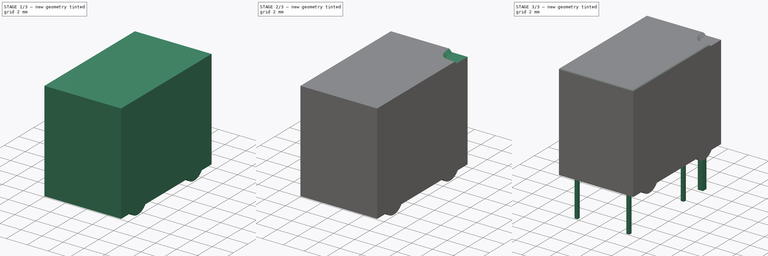
[diagram: build sequence overview — one tinted view per stage of 3, left to right]
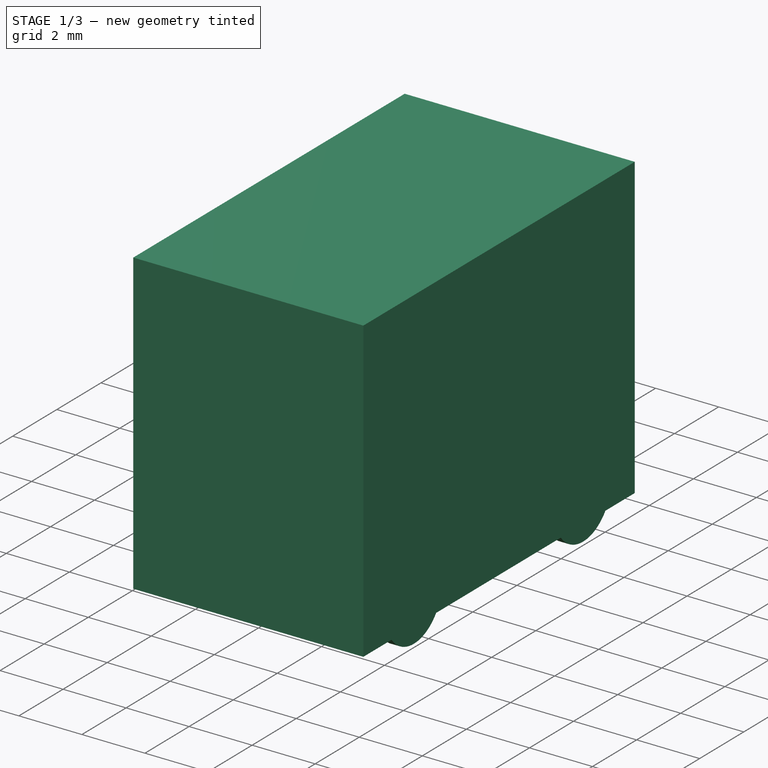
[diagram: stage 1 of 3 — iso view after this stage's code; geometry added in this stage tinted green]
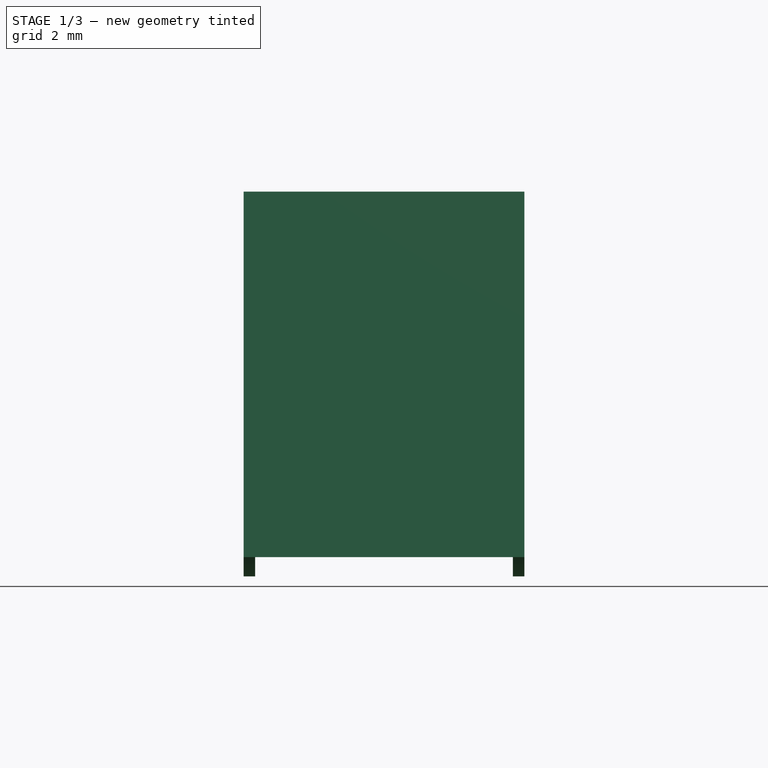
[diagram: stage 1 of 3 — front view after this stage's code; geometry added in this stage tinted green]
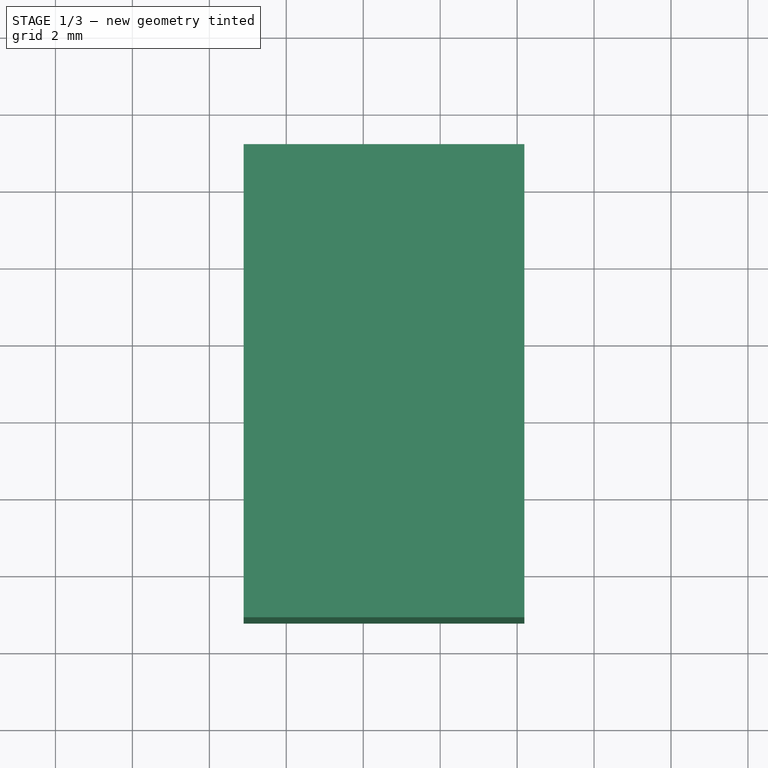
[diagram: stage 1 of 3 — top view after this stage's code; geometry added in this stage tinted green]
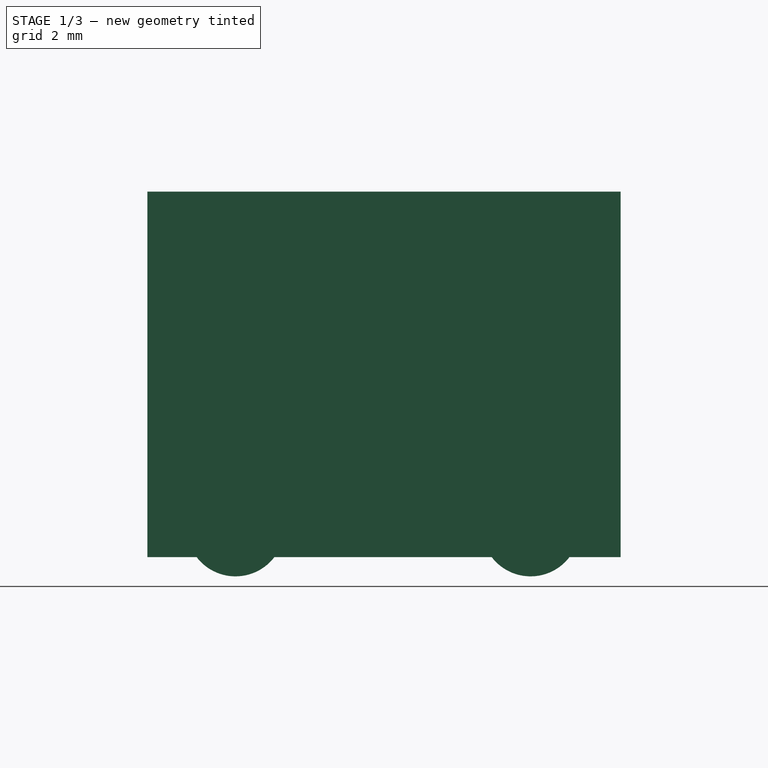
[diagram: stage 1 of 3 — right view after this stage's code; geometry added in this stage tinted green]
FCSTD DOCUMENT  (FreeCAD 0.16R6712 (Git))
Label: Relay_SPDT_Omron_G5V-1
License: All rights reserved
LicenseURL: http://en.wikipedia.org/wiki/All_rights_reserved
objects: Sketcher::SketchObject×5, PartDesign::Pad×4, PartDesign::Pocket×1, PartDesign::Chamfer×1, PartDesign::Fillet×1, Part::MultiFuse×1
note: 18 computed .brp shape members not serialized (recipe doc carries the construction recipe); baked Part::Feature solids carry a one-line shape summary decoded from their .brp

FEATURE [Sketcher::SketchObject] Sketch
  Placement = pos=(0,0,0.5) rot=(0,0,-1;1.5708rad)
  sketch-geometry (4):
    g0: LineSegment StartX=-1.07 StartY=-1.11 StartZ=0 EndX=11.23 EndY=-1.11 EndZ=0
    g1: LineSegment StartX=11.23 StartY=-1.11 StartZ=0 EndX=11.23 EndY=6.19 EndZ=0
    g2: LineSegment StartX=11.23 StartY=6.19 StartZ=0 EndX=-1.07 EndY=6.19 EndZ=0
    g3: LineSegment StartX=-1.07 StartY=6.19 StartZ=0 EndX=-1.07 EndY=-1.11 EndZ=0
  constraints (12):
    c: Coincident(g0,g1)
    c: Coincident(g1,g2)
    c: Coincident(g2,g3)
    c: Coincident(g3,g0)
    c: Horizontal(g0)
    c: Horizontal(g2)
    c: Vertical(g1)
    c: Vertical(g3)
    c: DistanceX(g2,g2) = 12.3
    c: DistanceY(g1,g1) = 7.3
    c: DistanceX(g0,g-1) = 1.07
    c: DistanceY(g0,g-1) = 1.11
FEATURE [PartDesign::Pad] Pad
  Length = 9.5
  Length2 = 100
  Placement = pos=(0,0,0.5) rot=(0,0,-1;1.5708rad)
  Sketch = -> Sketch
  Type = 0
FEATURE [Sketcher::SketchObject] Sketch003
  Placement = pos=(6.19,0,0) rot=(0.57735,0.57735,0.57735;2.0944rad)
  expr: Placement.Base.x = 7.3 - 1.11
  sketch-geometry (5):
    g0: ArcOfCircle CenterX=-8.94 CenterY=1.27 CenterZ=0 NormalX=0 NormalY=0 NormalZ=1 Radius=1.27 StartAngle=3.14159 EndAngle=6.28319
    g1: LineSegment StartX=-10.21 StartY=1.27 StartZ=0 EndX=-7.67 EndY=1.27 EndZ=0
    g2: ArcOfCircle CenterX=-1.27 CenterY=1.27 CenterZ=0 NormalX=0 NormalY=0 NormalZ=1 Radius=1.27 StartAngle=3.14159 EndAngle=6.28319
    g3: LineSegment StartX=-2.54 StartY=1.27 StartZ=0 EndX=0 EndY=1.27 EndZ=0
    g4: LineSegment [constr] StartX=-7.67 StartY=1.27 StartZ=0 EndX=-2.54 EndY=1.27 EndZ=0
  constraints (16):
    c: Coincident(g1,g0)
    c: Coincident(g1,g0)
    c: Horizontal(g1)
    c: PointOnObject(g0,g1)
    c: DistanceY(g-1,g0) = 1.27
    c: Radius(g0) = 1.27
    c: Coincident(g3,g2)
    c: Coincident(g3,g2)
    c: Horizontal(g3)
    c: PointOnObject(g2,g3)
    c: Equal(g0,g2) = 0.5
    c: Coincident(g4,g0)
    c: Coincident(g4,g2)
    c: Horizontal(g4)
    c: DistanceX(g0,g2) = 7.67
    c: DistanceX(g2,g-1) = 1.27
FEATURE [PartDesign::Pad] Pad002
  Length = 0.3
  Length2 = 100
  Placement = pos=(6.19,0,0) rot=(0.57735,0.57735,0.57735;2.0944rad)
  Reversed = true
  Sketch = -> Sketch003
  Type = 0
FEATURE [Sketcher::SketchObject] Sketch004
  Placement = pos=(-1.11,0,0) rot=(0.57735,0.57735,0.57735;2.0944rad)
  expr: Placement.Base.x = -1.11
  sketch-geometry (5):
    g0: ArcOfCircle CenterX=-8.94 CenterY=1.27 CenterZ=0 NormalX=0 NormalY=0 NormalZ=1 Radius=1.27 StartAngle=3.14159 EndAngle=6.28319
    g1: LineSegment StartX=-10.21 StartY=1.27 StartZ=0 EndX=-7.67 EndY=1.27 EndZ=0
    g2: ArcOfCircle CenterX=-1.27 CenterY=1.27 CenterZ=0 NormalX=0 NormalY=0 NormalZ=1 Radius=1.27 StartAngle=3.14159 EndAngle=6.28319
    g3: LineSegment StartX=-2.54 StartY=1.27 StartZ=0 EndX=0 EndY=1.27 EndZ=0
    g4: LineSegment [constr] StartX=-7.67 StartY=1.27 StartZ=0 EndX=-2.54 EndY=1.27 EndZ=0
  constraints (16):
    c: Coincident(g1,g0)
    c: Coincident(g1,g0)
    c: Horizontal(g1)
    c: PointOnObject(g0,g1)
    c: DistanceY(g-1,g0) = 1.27
    c: Radius(g0) = 1.27
    c: Coincident(g3,g2)
    c: Coincident(g3,g2)
    c: Horizontal(g3)
    c: PointOnObject(g2,g3)
    c: Equal(g0,g2) = 0.5
    c: Coincident(g4,g0)
    c: Coincident(g4,g2)
    c: Horizontal(g4)
    c: DistanceX(g0,g2) = 7.67
    c: DistanceX(g2,g-1) = 1.27
FEATURE [PartDesign::Pad] Pad003
  Length = 0.3
  Length2 = 100
  Placement = pos=(-1.11,0,0) rot=(0.57735,0.57735,0.57735;2.0944rad)
  Sketch = -> Sketch004
  Type = 0
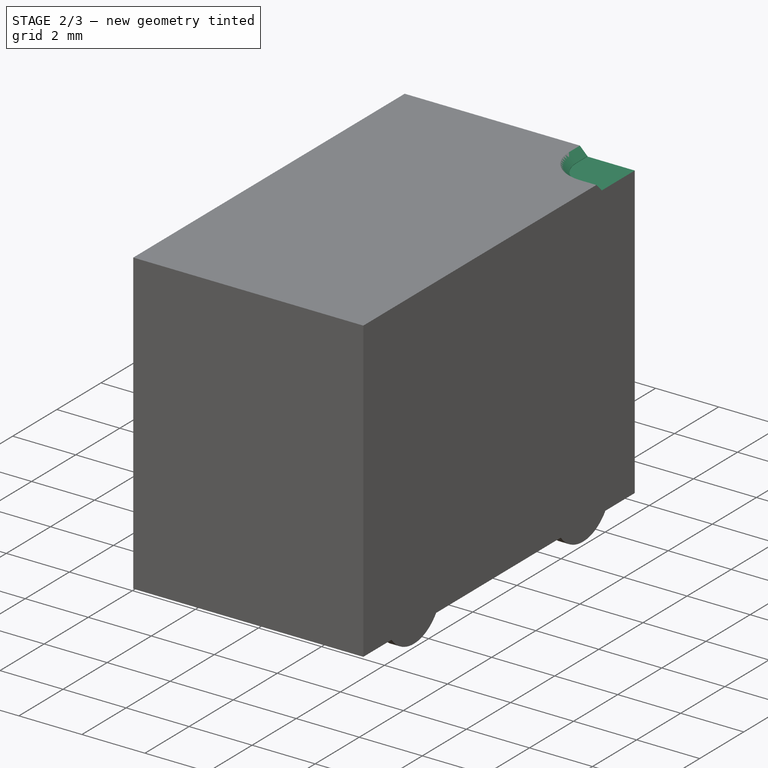
[diagram: stage 2 of 3 — iso view after this stage's code; geometry added in this stage tinted green]
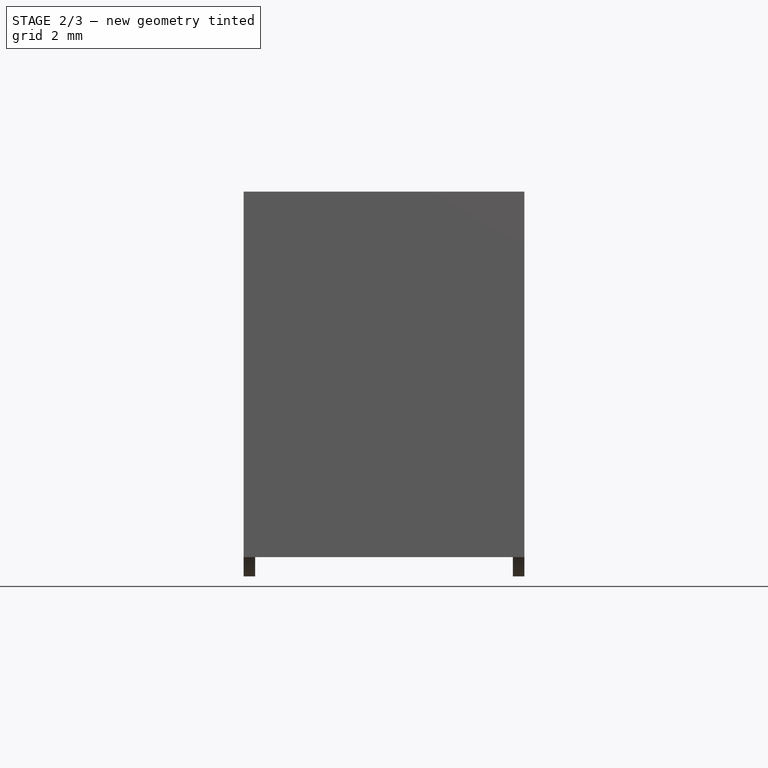
[diagram: stage 2 of 3 — front view after this stage's code; geometry added in this stage tinted green]
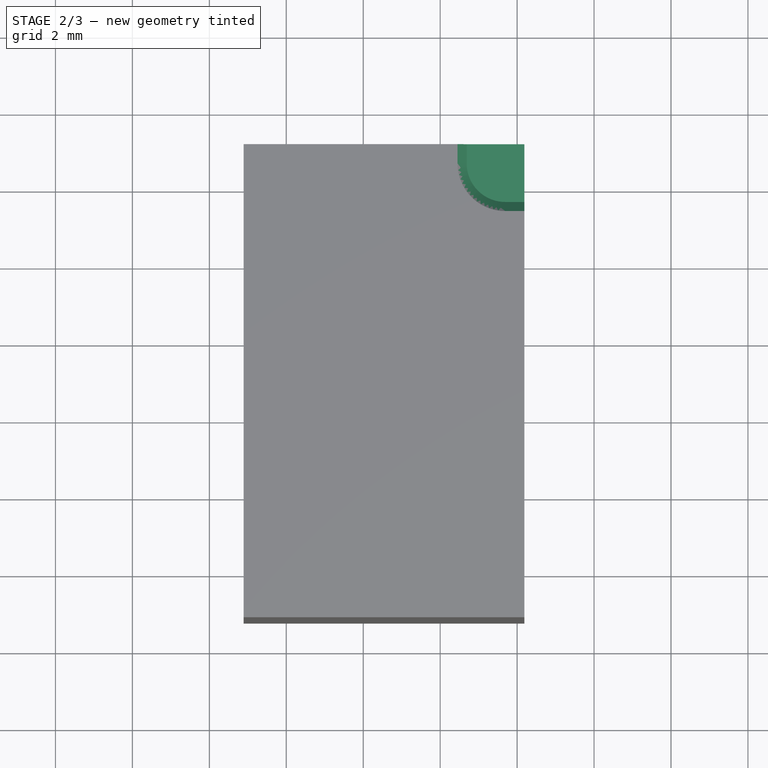
[diagram: stage 2 of 3 — top view after this stage's code; geometry added in this stage tinted green]
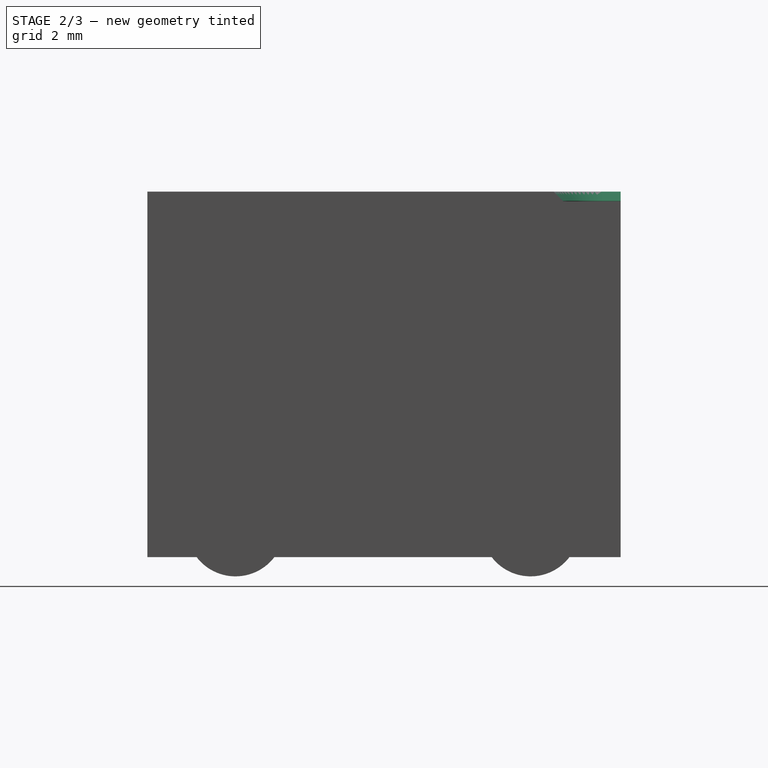
[diagram: stage 2 of 3 — right view after this stage's code; geometry added in this stage tinted green]
FEATURE [Sketcher::SketchObject] Sketch002
  ExternalGeometry = -> [Pad]
  Placement = pos=(0,0,10) rot=(0,0,-1;1.5708rad)
  Support = -> Pad [Face6]
  sketch-geometry (5):
    g0: ArcOfCircle CenterX=-0.57 CenterY=5.69 CenterZ=0 NormalX=0 NormalY=0 NormalZ=1 Radius=1 StartAngle=4.71239 EndAngle=6.28319
    g1: LineSegment StartX=-0.57 StartY=4.69 StartZ=0 EndX=-1.07 EndY=4.69 EndZ=0
    g2: LineSegment StartX=-1.07 StartY=4.69 StartZ=0 EndX=-1.07 EndY=6.19 EndZ=0
    g3: LineSegment StartX=-1.07 StartY=6.19 StartZ=0 EndX=0.43 EndY=6.19 EndZ=0
    g4: LineSegment StartX=0.43 StartY=6.19 StartZ=0 EndX=0.43 EndY=5.69 EndZ=0
  constraints (15):
    c: Coincident(g1,g0)
    c: PointOnObject(g1,g-4)
    c: Coincident(g2,g1)
    c: Coincident(g2,g-4)
    c: Coincident(g3,g2)
    c: PointOnObject(g3,g-3)
    c: Coincident(g4,g3)
    c: Coincident(g4,g0)
    c: Vertical(g4)
    c: Horizontal(g1)
    c: DistanceY(g0,g2) = 0.5
    c: DistanceX(g2,g0) = 0.5
    c: Tangent(g1,g0)
    c: Tangent(g0,g4)
    c: Radius(g0) = 1
FEATURE [PartDesign::Pocket] Pocket
  Length = 0.25
  Placement = pos=(0,0,0.5) rot=(0,0,-1;1.5708rad)
  Sketch = -> Sketch002
  Type = 0
FEATURE [PartDesign::Chamfer] Chamfer
  Base = -> Pocket [Edge16,Edge15,Edge17]
  Placement = pos=(0,0,0.5) rot=(0,0,-1;1.5708rad)
  Size = 0.24
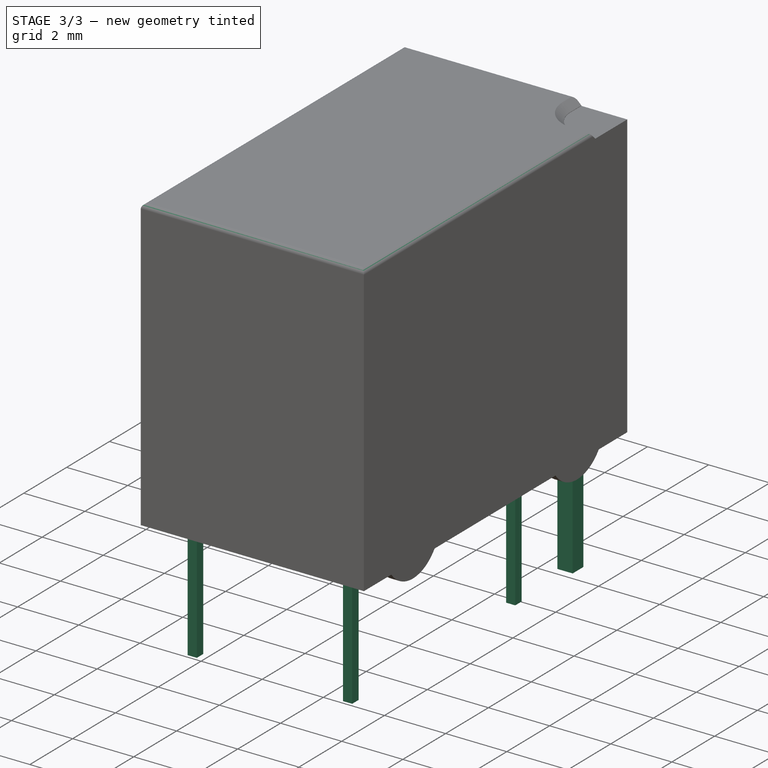
[diagram: stage 3 of 3 — iso view after this stage's code; geometry added in this stage tinted green]
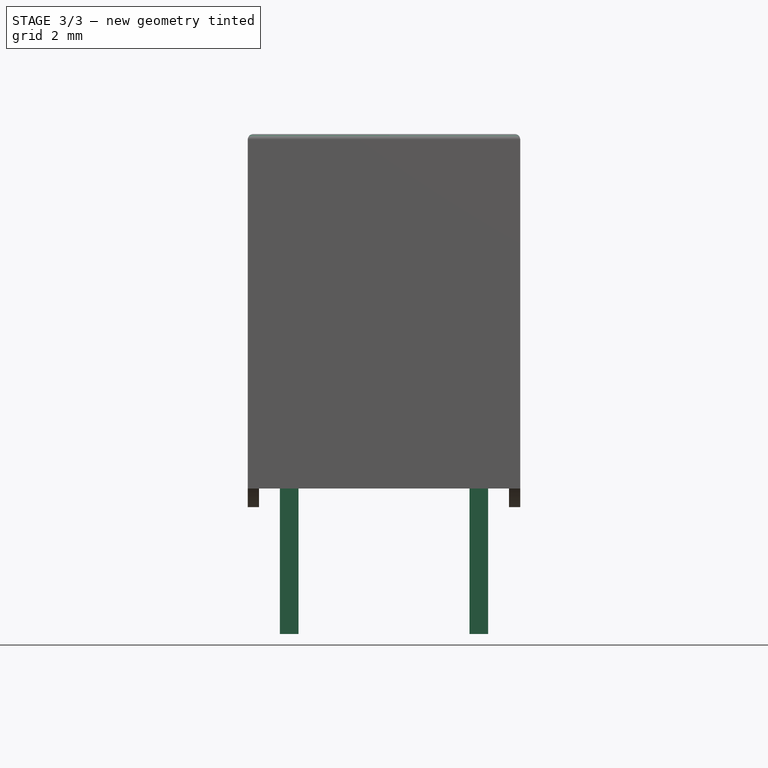
[diagram: stage 3 of 3 — front view after this stage's code; geometry added in this stage tinted green]
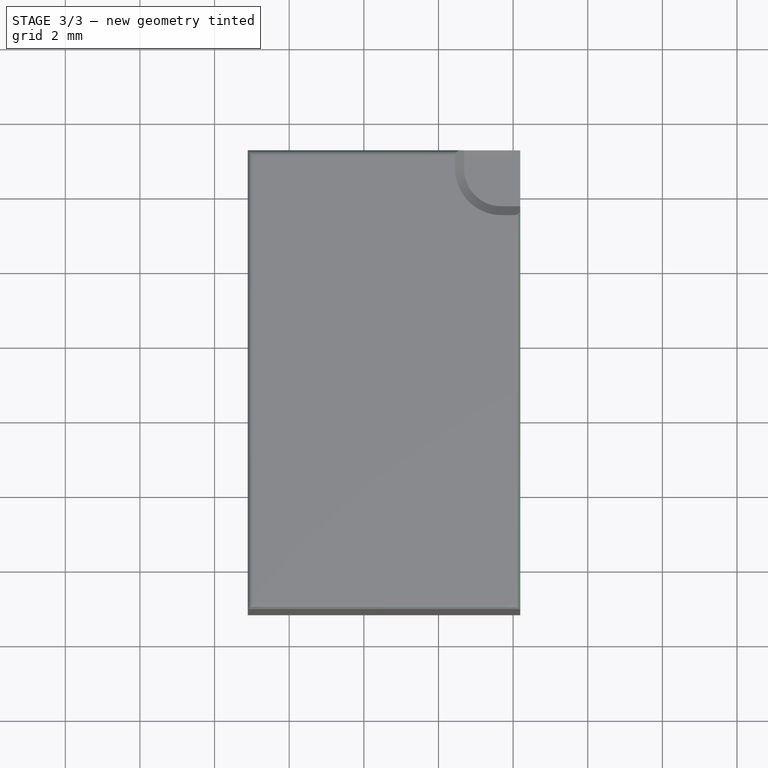
[diagram: stage 3 of 3 — top view after this stage's code; geometry added in this stage tinted green]
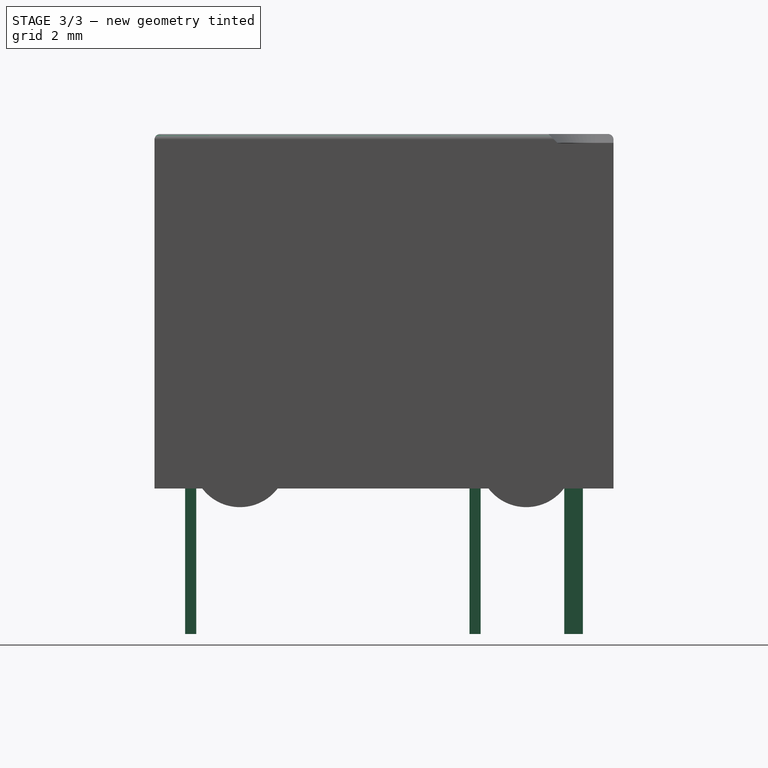
[diagram: stage 3 of 3 — right view after this stage's code; geometry added in this stage tinted green]
FEATURE [Sketcher::SketchObject] Sketch001
  Placement = pos=(0,0,0.6) rot=(0,0,-1;1.5708rad)
  sketch-geometry (30):
    g0: LineSegment StartX=-0.25 StartY=-0.25 StartZ=0 EndX=0.25 EndY=-0.25 EndZ=0
    g1: LineSegment StartX=0.25 StartY=-0.25 StartZ=0 EndX=0.25 EndY=0.25 EndZ=0
    g2: LineSegment StartX=0.25 StartY=0.25 StartZ=0 EndX=-0.25 EndY=0.25 EndZ=0
    g3: LineSegment StartX=-0.25 StartY=0.25 StartZ=0 EndX=-0.25 EndY=-0.25 EndZ=0
    g4: LineSegment StartX=2.79 StartY=0.15 StartZ=0 EndX=2.49 EndY=0.15 EndZ=0
    g5: LineSegment StartX=2.49 StartY=0.15 StartZ=0 EndX=2.49 EndY=-0.15 EndZ=0
    g6: LineSegment StartX=2.49 StartY=-0.15 StartZ=0 EndX=2.79 EndY=-0.15 EndZ=0
    g7: LineSegment StartX=2.79 StartY=-0.15 StartZ=0 EndX=2.79 EndY=0.15 EndZ=0
    g8: LineSegment StartX=-0.25 StartY=4.83 StartZ=0 EndX=0.25 EndY=4.83 EndZ=0
    g9: LineSegment StartX=0.25 StartY=4.83 StartZ=0 EndX=0.25 EndY=5.33 EndZ=0
    g10: LineSegment StartX=0.25 StartY=5.33 StartZ=0 EndX=-0.25 EndY=5.33 EndZ=0
    g11: LineSegment StartX=-0.25 StartY=5.33 StartZ=0 EndX=-0.25 EndY=4.83 EndZ=0
    g12: LineSegment StartX=2.79 StartY=4.93 StartZ=0 EndX=2.49 EndY=4.93 EndZ=0
    g13: LineSegment StartX=2.49 StartY=4.93 StartZ=0 EndX=2.49 EndY=5.23 EndZ=0
    g14: LineSegment StartX=2.49 StartY=5.23 StartZ=0 EndX=2.79 EndY=5.23 EndZ=0
    g15: LineSegment StartX=2.79 StartY=5.23 StartZ=0 EndX=2.79 EndY=4.93 EndZ=0
    g16: LineSegment StartX=10.41 StartY=0.15 StartZ=0 EndX=10.11 EndY=0.15 EndZ=0
    g17: LineSegment StartX=10.11 StartY=0.15 StartZ=0 EndX=10.11 EndY=-0.15 EndZ=0
    g18: LineSegment StartX=10.11 StartY=-0.15 StartZ=0 EndX=10.41 EndY=-0.15 EndZ=0
    g19: LineSegment StartX=10.41 StartY=-0.15 StartZ=0 EndX=10.41 EndY=0.15 EndZ=0
    g20: LineSegment StartX=10.11 StartY=5.23 StartZ=0 EndX=10.41 EndY=5.23 EndZ=0
    g21: LineSegment StartX=10.41 StartY=5.23 StartZ=0 EndX=10.41 EndY=4.93 EndZ=0
    g22: LineSegment StartX=10.41 StartY=4.93 StartZ=0 EndX=10.11 EndY=4.93 EndZ=0
    g23: LineSegment StartX=10.11 StartY=4.93 StartZ=0 EndX=10.11 EndY=5.23 EndZ=0
    g24: GeomPoint [constr] X=2.49 Y=0 Z=0
    g25: GeomPoint [constr] X=10.11 Y=0 Z=0
    g26: LineSegment [constr] StartX=10.11 StartY=5.23 StartZ=0 EndX=10.11 EndY=0.15 EndZ=0
    g27: LineSegment [constr] StartX=2.49 StartY=5.23 StartZ=0 EndX=2.49 EndY=0.15 EndZ=0
    g28: LineSegment [constr] StartX=-0.25 StartY=5.08 StartZ=0 EndX=10.11 EndY=5.08 EndZ=0
    g29: GeomPoint [constr] X=2.49 Y=5.08 Z=0
  constraints (86):
    c: Coincident(g0,g1)
    c: Coincident(g1,g2)
    c: Coincident(g2,g3)
    c: Coincident(g3,g0)
    c: Horizontal(g0)
    c: Horizontal(g2)
    c: Vertical(g1)
    c: Vertical(g3)
    c: DistanceX(g2,g2) = 0.5
    c: DistanceY(g1,g1) = 0.5
    c: DistanceX(g0,g-1) = 0.25
    c: DistanceY(g0,g-1) = 0.25
    c: Coincident(g4,g5)
    c: Coincident(g5,g6)
    c: Coincident(g6,g7)
    c: Coincident(g7,g4)
    c: Horizontal(g4)
    c: Horizontal(g6)
    c: Vertical(g5)
    c: Vertical(g7)
    c: Coincident(g8,g9)
    c: Coincident(g9,g10)
    c: Coincident(g10,g11)
    c: Coincident(g11,g8)
    c: Horizontal(g8)
    c: Horizontal(g10)
    c: Vertical(g9)
    c: Vertical(g11)
    c: Equal(g2,g10) = 0.3
    c: Equal(g1,g9) = 0.3
    c: Coincident(g12,g13)
    c: Coincident(g13,g14)
    c: Coincident(g14,g15)
    c: Coincident(g15,g12)
    c: Horizontal(g12)
    c: Horizontal(g14)
    c: Vertical(g13)
    c: Vertical(g15)
    c: DistanceY(g15,g15) = 0.3
    c: DistanceX(g8,g2) = 0
    c: DistanceX(g14,g14) = 0.3
    c: Coincident(g16,g17)
    c: Coincident(g17,g18)
    c: Coincident(g18,g19)
    c: Coincident(g19,g16)
    c: Horizontal(g16)
    c: Horizontal(g18)
    c: Vertical(g17)
    c: Vertical(g19)
    c: Coincident(g20,g21)
    c: Coincident(g21,g22)
    c: Coincident(g22,g23)
    c: Coincident(g23,g20)
    c: Horizontal(g20)
    c: Horizontal(g22)
    c: Vertical(g21)
    c: Vertical(g23)
    c: Equal(g15,g23) = 0.3
    c: Equal(g14,g22) = 0.3
    c: DistanceX(g4,g16) = 7.62
    c: DistanceX(g18,g18) = 0.3
    c: DistanceX(g0,g6) = 2.54
    c: Equal(g16,g4)
    c: Equal(g5,g17)
    c: PointOnObject(g24,g5)
    c: Symmetric(g5,g5,g24)
    c: PointOnObject(g24,g-1)
    c: Equal(g5,g4)
    c: PointOnObject(g25,g17)
    c: PointOnObject(g25,g-1)
    c: Symmetric(g17,g17,g25)
    c: Coincident(g26,g20)
    c: Coincident(g26,g16)
    c: Vertical(g26)
    c: Coincident(g27,g13)
    c: Coincident(g27,g4)
    c: Vertical(g27)
    c: PointOnObject(g28,g11)
    c: PointOnObject(g28,g23)
    c: Horizontal(g28)
    c: Symmetric(g23,g23,g28)
    c: PointOnObject(g29,g13)
    c: PointOnObject(g29,g28)
    c: Symmetric(g13,g13,g29)
    c: Symmetric(g11,g11,g28)
    c: DistanceY(g-1,g28) = 5.08
FEATURE [PartDesign::Pad] Pad001
  Length = 4
  Length2 = 100
  Placement = pos=(0,0,0.6) rot=(0,0,-1;1.5708rad)
  Reversed = true
  Sketch = -> Sketch001
  Type = 0
FEATURE [PartDesign::Fillet] Fillet
  Base = -> Chamfer [Edge8,Edge1,Edge12,Edge10]
  Placement = pos=(0,0,0.5) rot=(0,0,-1;1.5708rad)
  Radius = 0.15
FEATURE [Part::MultiFuse] Pad003_mp_cp  label="Relay_SPDT_Omron_G5V-1"
  Shapes = -> [Pad003,Pad002,Fillet,Pad001]
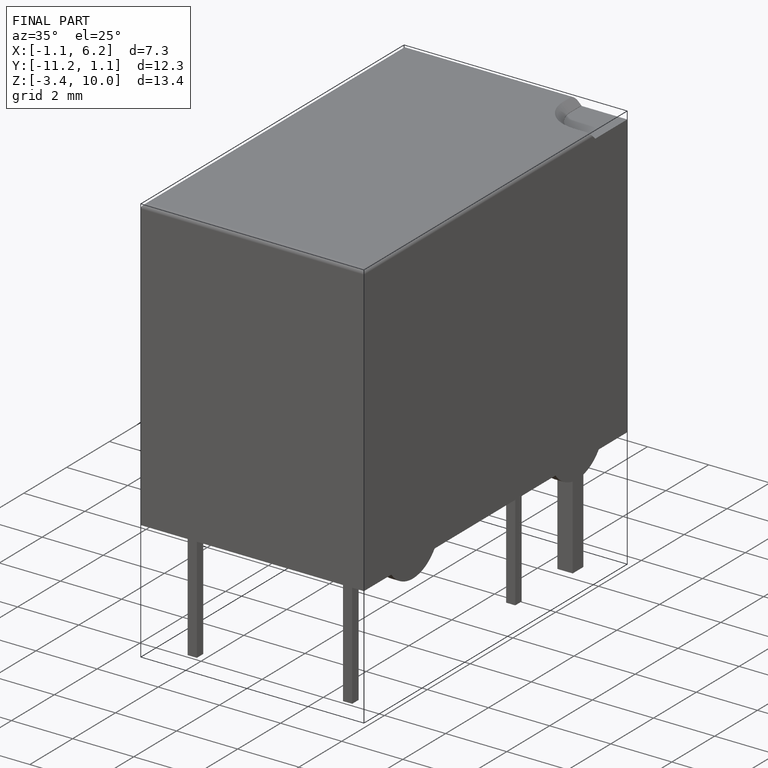
[diagram: finished part — iso view with bounding-box wireframe]
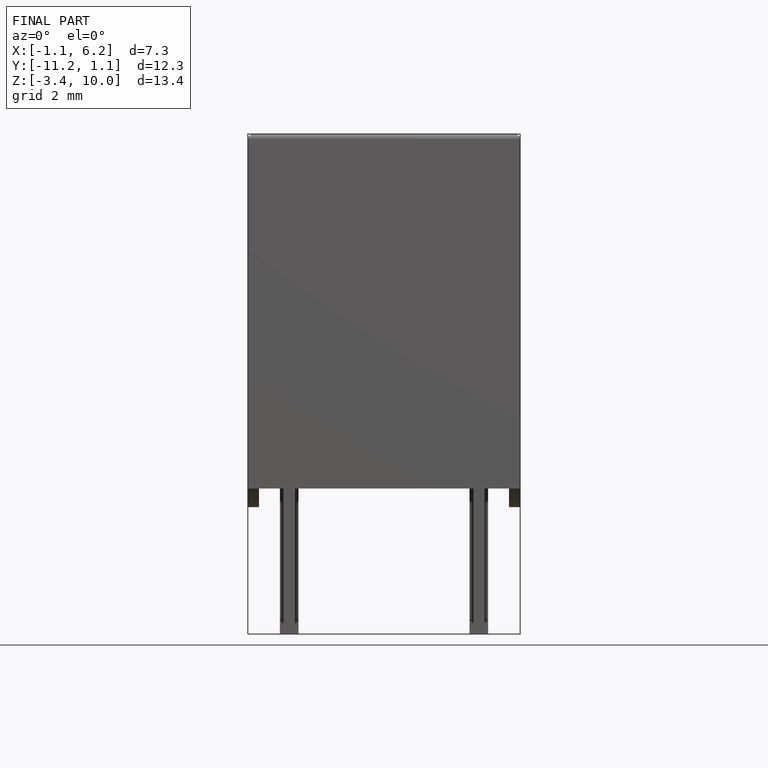
[diagram: finished part — front view with bounding-box wireframe]
